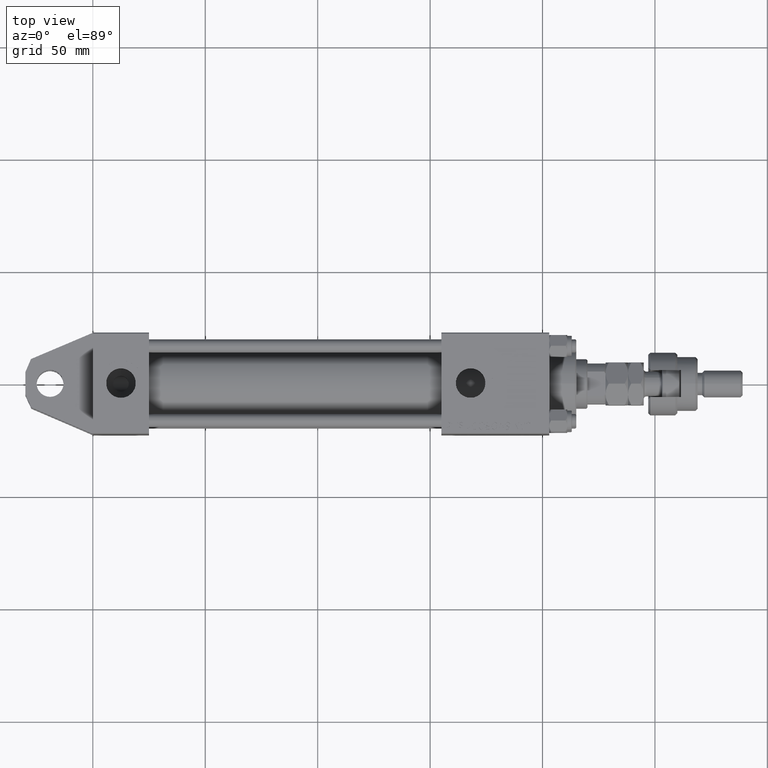
[diagram: clean part render]
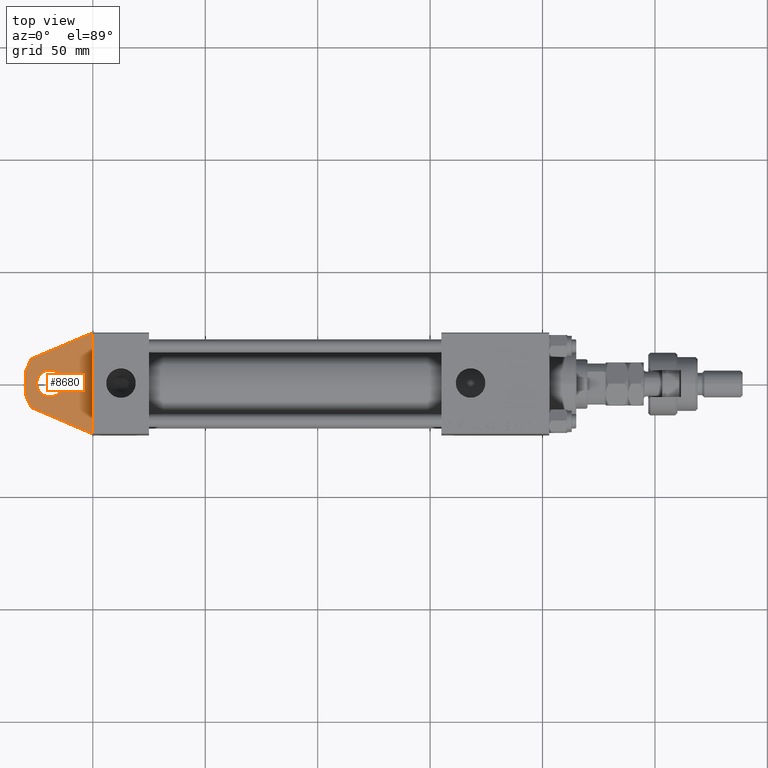
[diagram: same view with one face highlighted and labeled with its STEP entity id]
A machine part, top view. The second image highlights one B-rep face of the part: STEP entity #8680.
In plain terms, the highlighted planar face has unit normal (0, 0, 1).
Its self-contained STEP definition (entity closure, byte-faithful):
#211 = CARTESIAN_POINT ( 'NONE',  ( -27.49177119113045720, -16.00000000000000000, 10.83363422253716735 ) ) ;
#1247 = CARTESIAN_POINT ( 'NONE',  ( -19.00000000000000000, -16.00000000000000000, 5.999999999999997335 ) ) ;
#1688 = EDGE_LOOP ( 'NONE', ( #21082, #46408, #27946, #44149, #48846, #25460 ) ) ;
#1995 = DIRECTION ( 'NONE',  ( 0.000000000000000000, 0.000000000000000000, -1.000000000000000000 ) ) ;
#3014 = CARTESIAN_POINT ( 'NONE',  ( -30.00000000000000000, -16.00000000000000000, -5.000000000000003553 ) ) ;
#3097 = CARTESIAN_POINT ( 'NONE',  ( -30.00000000000000000, -16.00000000000000000, 4.999999999999996447 ) ) ;
#3498 = CIRCLE ( 'NONE', #17880, 6.000000000000000888 ) ;
#3998 = CARTESIAN_POINT ( 'NONE',  ( -30.00000000000000000, -16.00000000000000000, 4.999999999999996447 ) ) ;
#4637 = CARTESIAN_POINT ( 'NONE',  ( -30.00000000000000000, -16.00000000000000000, -5.000000000000003553 ) ) ;
#5812 = VERTEX_POINT ( 'NONE', #1247 ) ;
#6752 = LINE ( 'NONE', #40387, #16885 ) ;
#7119 = VECTOR ( 'NONE', #1995, 1000.000000000000000 ) ;
#8680 = ADVANCED_FACE ( 'NONE', ( #27145, #42569 ), #38584, .T. ) ;
#8721 = CARTESIAN_POINT ( 'NONE',  ( 0.000000000000000000, -15.99999999999999289, 22.50000000000000000 ) ) ;
#9827 = VERTEX_POINT ( 'NONE', #35041 ) ;
#12336 = DIRECTION ( 'NONE',  ( -0.000000000000000000, 1.000000000000000000, -0.000000000000000000 ) ) ;
#12346 = LINE ( 'NONE', #4637, #37855 ) ;
#14467 = EDGE_CURVE ( 'NONE', #5812, #14682, #18588, .T. ) ;
#14682 = VERTEX_POINT ( 'NONE', #39602 ) ;
#14708 = VERTEX_POINT ( 'NONE', #3998 ) ;
#16068 = CARTESIAN_POINT ( 'NONE',  ( -19.00000000000000000, -16.00000000000000000, -3.469446951953614189E-15 ) ) ;
#16885 = VECTOR ( 'NONE', #20195, 1000.000000000000000 ) ;
#17497 = CARTESIAN_POINT ( 'NONE',  ( -27.31637403794659136, -16.00000000000000000, -10.75505444768274543 ) ) ;
#17880 = AXIS2_PLACEMENT_3D ( 'NONE', #30949, #34695, #47154 ) ;
#18166 = LINE ( 'NONE', #22140, #39576 ) ;
#18588 = CIRCLE ( 'NONE', #40649, 6.000000000000000888 ) ;
#18915 = DIRECTION ( 'NONE',  ( 0.000000000000000000, 0.000000000000000000, 1.000000000000000000 ) ) ;
#19784 = DIRECTION ( 'NONE',  ( 0.000000000000000000, 0.000000000000000000, 1.000000000000000000 ) ) ;
#20195 = DIRECTION ( 'NONE',  ( -0.4226182617406942232, 0.000000000000000000, 0.9063077870366523792 ) ) ;
#20450 = CARTESIAN_POINT ( 'NONE',  ( -27.31637403794659136, -16.00000000000000000, -10.75505444768274543 ) ) ;
#20459 = VERTEX_POINT ( 'NONE', #8721 ) ;
#21082 = ORIENTED_EDGE ( 'NONE', *, *, #39001, .F. ) ;
#21185 = EDGE_LOOP ( 'NONE', ( #42701, #41837 ) ) ;
#21739 = LINE ( 'NONE', #17497, #36922 ) ;
#22140 = CARTESIAN_POINT ( 'NONE',  ( -27.49177119113045720, -16.00000000000000000, 10.83363422253716735 ) ) ;
#25460 = ORIENTED_EDGE ( 'NONE', *, *, #52540, .F. ) ;
#25730 = DIRECTION ( 'NONE',  ( -0.9186825547302631678, 0.000000000000000000, 0.3949966628141013958 ) ) ;
#26885 = CARTESIAN_POINT ( 'NONE',  ( 0.000000000000000000, -16.00000000000000000, 0.000000000000000000 ) ) ;
#27145 = FACE_BOUND ( 'NONE', #21185, .T. ) ;
#27901 = VERTEX_POINT ( 'NONE', #211 ) ;
#27946 = ORIENTED_EDGE ( 'NONE', *, *, #28522, .F. ) ;
#28522 = EDGE_CURVE ( 'NONE', #36640, #49393, #6752, .T. ) ;
#29306 = DIRECTION ( 'NONE',  ( 0.9205433724492674274, 0.000000000000000000, 0.3906403709804319724 ) ) ;
#30459 = LINE ( 'NONE', #3097, #36706 ) ;
#30949 = CARTESIAN_POINT ( 'NONE',  ( -19.00000000000000000, -16.00000000000000000, -3.469446951953614189E-15 ) ) ;
#32117 = EDGE_CURVE ( 'NONE', #14682, #5812, #3498, .T. ) ;
#32537 = DIRECTION ( 'NONE',  ( 0.000000000000000000, 0.000000000000000000, 1.000000000000000000 ) ) ;
#33752 = AXIS2_PLACEMENT_3D ( 'NONE', #26885, #43360, #18915 ) ;
#34695 = DIRECTION ( 'NONE',  ( -0.000000000000000000, 1.000000000000000000, -0.000000000000000000 ) ) ;
#34726 = DIRECTION ( 'NONE',  ( 0.3949966628141011737, 0.000000000000000000, 0.9186825547302632788 ) ) ;
#35041 = CARTESIAN_POINT ( 'NONE',  ( 0.000000000000000000, -16.00000000000000000, -22.50000000000000711 ) ) ;
#36640 = VERTEX_POINT ( 'NONE', #20450 ) ;
#36706 = VECTOR ( 'NONE', #34726, 1000.000000000000000 ) ;
#36922 = VECTOR ( 'NONE', #25730, 1000.000000000000227 ) ;
#37855 = VECTOR ( 'NONE', #32537, 1000.000000000000000 ) ;
#38584 = PLANE ( 'NONE',  #33752 ) ;
#39001 = EDGE_CURVE ( 'NONE', #14708, #27901, #30459, .T. ) ;
#39576 = VECTOR ( 'NONE', #29306, 999.9999999999998863 ) ;
#39602 = CARTESIAN_POINT ( 'NONE',  ( -19.00000000000000000, -16.00000000000000000, -6.000000000000004441 ) ) ;
#40387 = CARTESIAN_POINT ( 'NONE',  ( -30.00000000000000000, -16.00000000000000000, -5.000000000000003553 ) ) ;
#40649 = AXIS2_PLACEMENT_3D ( 'NONE', #16068, #12336, #19784 ) ;
#41837 = ORIENTED_EDGE ( 'NONE', *, *, #32117, .T. ) ;
#41992 = EDGE_CURVE ( 'NONE', #20459, #9827, #50860, .T. ) ;
#42371 = CARTESIAN_POINT ( 'NONE',  ( 0.000000000000000000, -16.00000000000000000, 22.50000000000000000 ) ) ;
#42569 = FACE_OUTER_BOUND ( 'NONE', #1688, .T. ) ;
#42701 = ORIENTED_EDGE ( 'NONE', *, *, #14467, .T. ) ;
#43360 = DIRECTION ( 'NONE',  ( 0.000000000000000000, -1.000000000000000000, 0.000000000000000000 ) ) ;
#44149 = ORIENTED_EDGE ( 'NONE', *, *, #49877, .F. ) ;
#46408 = ORIENTED_EDGE ( 'NONE', *, *, #52423, .F. ) ;
#47154 = DIRECTION ( 'NONE',  ( 0.000000000000000000, 0.000000000000000000, 1.000000000000000000 ) ) ;
#48846 = ORIENTED_EDGE ( 'NONE', *, *, #41992, .F. ) ;
#49393 = VERTEX_POINT ( 'NONE', #3014 ) ;
#49877 = EDGE_CURVE ( 'NONE', #9827, #36640, #21739, .T. ) ;
#50860 = LINE ( 'NONE', #42371, #7119 ) ;
#52423 = EDGE_CURVE ( 'NONE', #49393, #14708, #12346, .T. ) ;
#52540 = EDGE_CURVE ( 'NONE', #27901, #20459, #18166, .T. ) ;